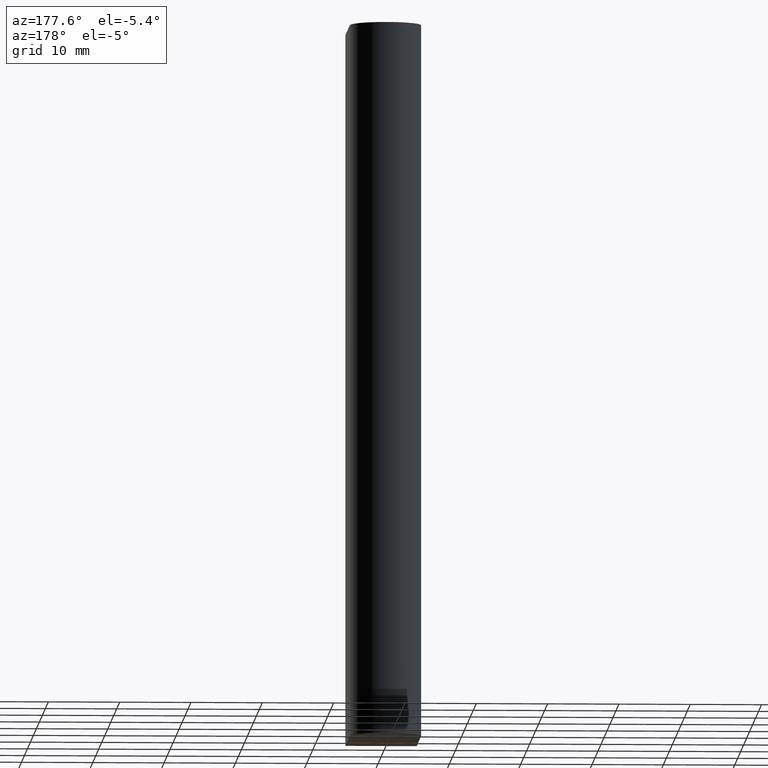
[diagram: clean part render]
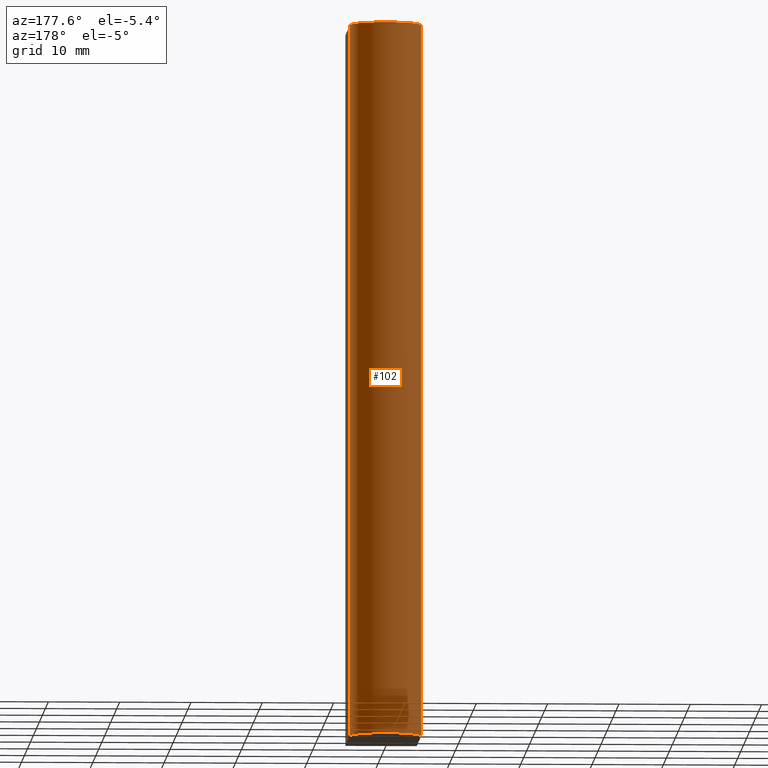
[diagram: same view with one face highlighted and labeled with its STEP entity id]
A machine part, auxiliary view. The second image highlights one B-rep face of the part: STEP entity #102.
In plain terms, the highlighted cylindrical surface (edge-blend (fillet) strip) has radius 5 mm, axis along (0, 0, 1).
Its self-contained STEP definition (entity closure, byte-faithful):
#16=CYLINDRICAL_SURFACE('',#129,5.);
#19=FACE_OUTER_BOUND('',#25,.T.);
#25=EDGE_LOOP('',(#79,#80,#81,#82));
#29=CIRCLE('',#127,5.);
#30=CIRCLE('',#130,5.);
#35=LINE('',#176,#45);
#37=LINE('',#181,#47);
#45=VECTOR('',#146,10.);
#47=VECTOR('',#152,10.);
#52=VERTEX_POINT('',#165);
#54=VERTEX_POINT('',#169);
#56=VERTEX_POINT('',#174);
#57=VERTEX_POINT('',#179);
#62=EDGE_CURVE('',#52,#54,#29,.T.);
#64=EDGE_CURVE('',#54,#56,#35,.T.);
#66=EDGE_CURVE('',#56,#57,#30,.T.);
#67=EDGE_CURVE('',#52,#57,#37,.T.);
#79=ORIENTED_EDGE('',*,*,#66,.T.);
#80=ORIENTED_EDGE('',*,*,#67,.F.);
#81=ORIENTED_EDGE('',*,*,#62,.T.);
#82=ORIENTED_EDGE('',*,*,#64,.T.);
#102=ADVANCED_FACE('',(#19),#16,.T.);
#127=AXIS2_PLACEMENT_3D('',#171,#141,#142);
#129=AXIS2_PLACEMENT_3D('',#178,#148,#149);
#130=AXIS2_PLACEMENT_3D('',#180,#150,#151);
#141=DIRECTION('center_axis',(0.,0.,1.));
#142=DIRECTION('ref_axis',(-2.22044604925031E-16,1.,0.));
#146=DIRECTION('',(0.,0.,1.));
#148=DIRECTION('center_axis',(0.,0.,1.));
#149=DIRECTION('ref_axis',(1.,7.77156117237609E-16,0.));
#150=DIRECTION('center_axis',(0.,0.,-1.));
#151=DIRECTION('ref_axis',(1.,7.77156117237609E-16,0.));
#152=DIRECTION('',(0.,0.,1.));
#165=CARTESIAN_POINT('',(5.,5.,-50.));
#169=CARTESIAN_POINT('',(-5.,5.,-50.));
#171=CARTESIAN_POINT('Origin',(2.77555756156289E-15,5.,-50.));
#174=CARTESIAN_POINT('',(-5.,5.,50.));
#176=CARTESIAN_POINT('',(-5.,5.,0.));
#178=CARTESIAN_POINT('Origin',(-3.05311331771918E-15,5.,0.));
#179=CARTESIAN_POINT('',(5.,5.,50.));
#180=CARTESIAN_POINT('Origin',(-3.05311331771918E-15,5.,50.));
#181=CARTESIAN_POINT('',(5.,5.,0.));